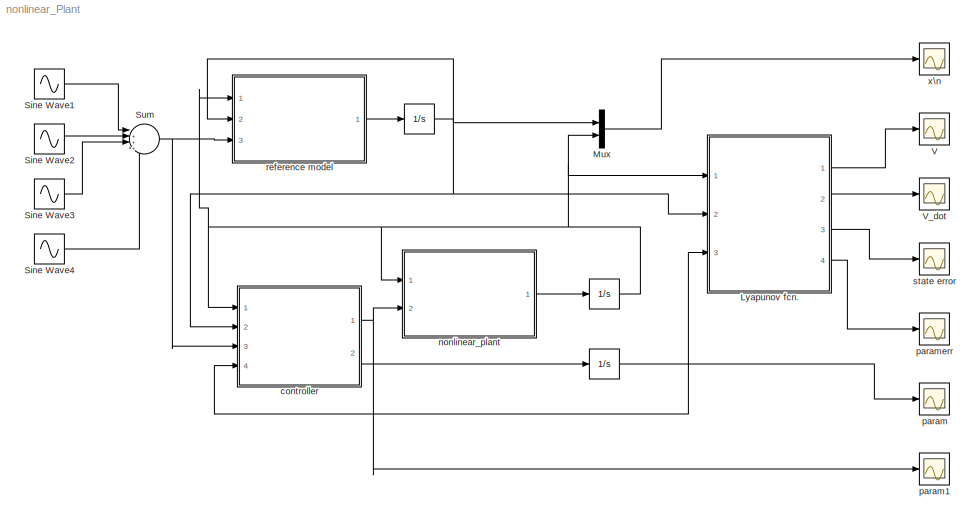
MODEL nonlinear_Plant
KIND model
BLOCK [Integrator]  
  InitialCondition = param_0
  Ports = [1, 1]
  SID = 3
BLOCK [Integrator]     
  InitialCondition = x_p_0
  Ports = [1, 1]
  SID = 2
BLOCK [Integrator]                   
  InitialCondition = x_m_0
  Ports = [1, 1]
  SID = 1
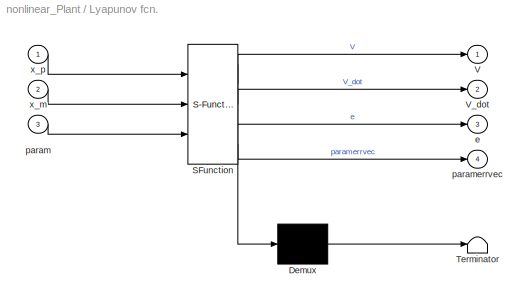
BLOCK [SubSystem] Lyapunov fcn.
  ErrorFcn = Stateflow.Translate.translate
  PermitHierarchicalResolution = ExplicitOnly
  Ports = [3, 4]
  RequestExecContextInheritance = off
  SFBlockType = MATLAB Function
  SID = 5
  TreatAsAtomicUnit = on
BLOCK [Demux] Lyapunov fcn./ Demux 
  Outputs = 1
  Ports = [1, 1]
  SID = 5::37
BLOCK [S-Function] Lyapunov fcn./ SFunction 
  EnableBusSupport = on
  FunctionName = sf_sfun
  Parameters = Gamma,a_m,k_p,k_star,theta_f,theta_star
  PortCounts = [3 5]
  Ports = [3, 5]
  SID = 5::36
  Tag = Stateflow S-Function nonlinear_Plant 4
BLOCK [Terminator] Lyapunov fcn./ Terminator 
  SID = 5::38
BLOCK [Outport] Lyapunov fcn./V
  IconDisplay = Port number
  SID = 5::23
BLOCK [Outport] Lyapunov fcn./V_dot
  IconDisplay = Port number
  Port = 2
  SID = 5::28
BLOCK [Outport] Lyapunov fcn./e
  IconDisplay = Port number
  Port = 3
  SID = 5::35
BLOCK [Inport] Lyapunov fcn./param
  IconDisplay = Port number
  Port = 3
  SID = 5::27
BLOCK [Outport] Lyapunov fcn./paramerrvec
  IconDisplay = Port number
  Port = 4
  SID = 5::34
BLOCK [Inport] Lyapunov fcn./x_m
  IconDisplay = Port number
  Port = 2
  SID = 5::22
BLOCK [Inport] Lyapunov fcn./x_p
  IconDisplay = Port number
  SID = 5::21
BLOCK [Mux] Mux
  DisplayOption = bar
  Inputs = 2
  Ports = [2, 1]
  SID = 8
BLOCK [Sin] Sine Wave1
  Frequency = 3
  Ports = [0, 1]
  SID = 20
  SampleTime = 0
BLOCK [Sin] Sine Wave2
  Frequency = 3/2
  Ports = [0, 1]
  SID = 22
  SampleTime = 0
BLOCK [Sin] Sine Wave3
  Frequency = 3/4
  Ports = [0, 1]
  SID = 23
  SampleTime = 0
BLOCK [Sin] Sine Wave4
  Frequency = 3/8
  Ports = [0, 1]
  SID = 24
  SampleTime = 0
BLOCK [Sum] Sum
  IconShape = round
  InputSameDT = off
  Inputs = |++++
  OutDataTypeStr = Inherit: Inherit via internal rule
  Ports = [4, 1]
  SID = 21
  SaturateOnIntegerOverflow = off
BLOCK [Scope] V
  DataFormat = StructureWithTime
  Floating = off
  LimitDataPoints = off
  NumInputPorts = 1
  Ports = [1]
  SID = 41
  SaveName = lyapunov
  SaveToWorkspace = on
BLOCK [Scope] V_dot
  DataFormat = StructureWithTime
  Floating = off
  LimitDataPoints = off
  NumInputPorts = 1
  Ports = [1]
  SID = 42
  SaveName = lyapunov_dot
  SaveToWorkspace = on
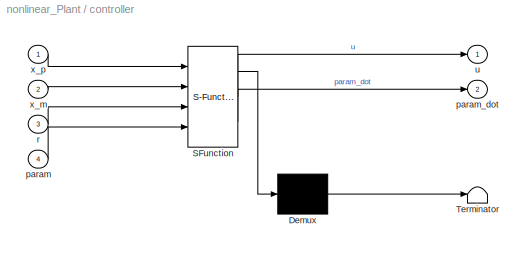
BLOCK [SubSystem] controller
  ErrorFcn = Stateflow.Translate.translate
  PermitHierarchicalResolution = ExplicitOnly
  Ports = [4, 2]
  RequestExecContextInheritance = off
  SFBlockType = MATLAB Function
  SID = 15
  TreatAsAtomicUnit = on
BLOCK [Demux] controller/ Demux 
  Outputs = 1
  Ports = [1, 1]
  SID = 15::36
BLOCK [S-Function] controller/ SFunction 
  EnableBusSupport = on
  FunctionName = sf_sfun
  Parameters = Gamma,k_p
  PortCounts = [4 3]
  Ports = [4, 3]
  SID = 15::35
  Tag = Stateflow S-Function nonlinear_Plant 2
BLOCK [Terminator] controller/ Terminator 
  SID = 15::37
BLOCK [Inport] controller/param
  IconDisplay = Port number
  Port = 4
  SID = 15::24
BLOCK [Outport] controller/param_dot
  IconDisplay = Port number
  Port = 2
  SID = 15::26
BLOCK [Inport] controller/r
  IconDisplay = Port number
  Port = 3
  SID = 15::22
BLOCK [Outport] controller/u
  IconDisplay = Port number
  SID = 15::23
BLOCK [Inport] controller/x_m
  IconDisplay = Port number
  Port = 2
  SID = 15::28
BLOCK [Inport] controller/x_p
  IconDisplay = Port number
  SID = 15::21
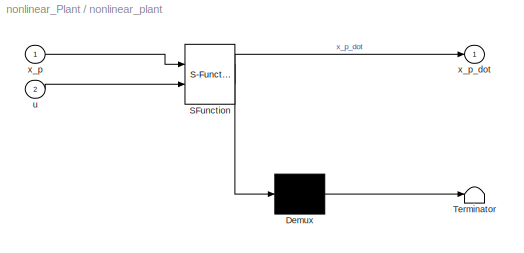
BLOCK [SubSystem] nonlinear_plant
  ErrorFcn = Stateflow.Translate.translate
  PermitHierarchicalResolution = ExplicitOnly
  Ports = [2, 1]
  RequestExecContextInheritance = off
  SFBlockType = MATLAB Function
  SID = 17
  TreatAsAtomicUnit = on
BLOCK [Demux] nonlinear_plant/ Demux 
  Outputs = 1
  Ports = [1, 1]
  SID = 17::31
BLOCK [S-Function] nonlinear_plant/ SFunction 
  EnableBusSupport = on
  FunctionName = sf_sfun
  Parameters = a_p,k_p,theta_f
  PortCounts = [2 2]
  Ports = [2, 2]
  SID = 17::30
  Tag = Stateflow S-Function nonlinear_Plant 3
BLOCK [Terminator] nonlinear_plant/ Terminator 
  SID = 17::32
BLOCK [Inport] nonlinear_plant/u
  IconDisplay = Port number
  Port = 2
  SID = 17::22
BLOCK [Inport] nonlinear_plant/x_p
  IconDisplay = Port number
  SID = 17::21
BLOCK [Outport] nonlinear_plant/x_p_dot
  IconDisplay = Port number
  SID = 17::23
BLOCK [Scope] param
  DataFormat = StructureWithTime
  Floating = off
  LimitDataPoints = off
  NumInputPorts = 1
  Ports = [1]
  SID = 44
  SaveName = parameters
  SaveToWorkspace = on
BLOCK [Scope] param1
  DataFormat = StructureWithTime
  Floating = off
  LimitDataPoints = off
  NumInputPorts = 1
  Ports = [1]
  SID = 46
  SaveName = input
  SaveToWorkspace = on
  TimeRange = 0.05881717526330021
  YMax = 0.3911744634939899
  YMin = 0.3911739240378291
BLOCK [Scope] paramerr
  DataFormat = StructureWithTime
  Floating = off
  LimitDataPoints = off
  NumInputPorts = 1
  Ports = [1]
  SID = 43
  SaveName = parameter_errors
  SaveToWorkspace = on
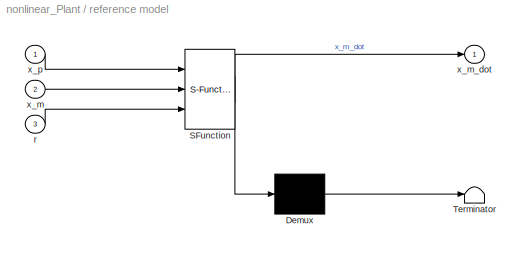
BLOCK [SubSystem] reference model
  ErrorFcn = Stateflow.Translate.translate
  PermitHierarchicalResolution = ExplicitOnly
  Ports = [3, 1]
  RequestExecContextInheritance = off
  SFBlockType = MATLAB Function
  SID = 18
  TreatAsAtomicUnit = on
BLOCK [Demux] reference model/ Demux 
  Outputs = 1
  Ports = [1, 1]
  SID = 18::27
BLOCK [S-Function] reference model/ SFunction 
  EnableBusSupport = on
  FunctionName = sf_sfun
  Parameters = a_m,k_m,l
  PortCounts = [3 2]
  Ports = [3, 2]
  SID = 18::26
  Tag = Stateflow S-Function nonlinear_Plant 1
BLOCK [Terminator] reference model/ Terminator 
  SID = 18::28
BLOCK [Inport] reference model/r
  IconDisplay = Port number
  Port = 3
  SID = 18::22
BLOCK [Inport] reference model/x_m
  IconDisplay = Port number
  Port = 2
  SID = 18::21
BLOCK [Outport] reference model/x_m_dot
  IconDisplay = Port number
  SID = 18::23
BLOCK [Inport] reference model/x_p
  IconDisplay = Port number
  SID = 18::29
BLOCK [Scope] state error
  DataFormat = StructureWithTime
  Floating = off
  LimitDataPoints = off
  NumInputPorts = 1
  Ports = [1]
  SID = 31
  SaveName = error
  SaveToWorkspace = on
  YMax = 0.015
  YMin = -0.02
  ZoomMode = yonly
BLOCK [Scope] x\n
  DataFormat = StructureWithTime
  Floating = off
  LimitDataPoints = off
  NumInputPorts = 1
  Ports = [1]
  SID = 10
  SaveName = modelAndPlant
  SaveToWorkspace = on
  YMax = -146
  YMin = -163
NET                   :1 -> Lyapunov fcn.:2, Mux:1, controller:2, reference model:2
NET     :1 -> Lyapunov fcn.:1, Mux:2, controller:1, nonlinear_plant:1, reference model:1
NET  :1 -> Lyapunov fcn.:3, controller:4, param:1
LINE Lyapunov fcn./ Demux :1 -> Lyapunov fcn./ Terminator :1
LINE Lyapunov fcn./ SFunction :1 -> Lyapunov fcn./ Demux :1
LINE Lyapunov fcn./ SFunction :2 -> Lyapunov fcn./V:1
LINE Lyapunov fcn./ SFunction :3 -> Lyapunov fcn./V_dot:1
LINE Lyapunov fcn./ SFunction :4 -> Lyapunov fcn./e:1
LINE Lyapunov fcn./ SFunction :5 -> Lyapunov fcn./paramerrvec:1
LINE Lyapunov fcn./param:1 -> Lyapunov fcn./ SFunction :3
LINE Lyapunov fcn./x_m:1 -> Lyapunov fcn./ SFunction :2
LINE Lyapunov fcn./x_p:1 -> Lyapunov fcn./ SFunction :1
LINE Lyapunov fcn.:1 -> V:1
LINE Lyapunov fcn.:2 -> V_dot:1
LINE Lyapunov fcn.:3 -> state error:1
LINE Lyapunov fcn.:4 -> paramerr:1
LINE Mux:1 -> x\n:1
LINE Sine Wave1:1 -> Sum:1
LINE Sine Wave2:1 -> Sum:2
LINE Sine Wave3:1 -> Sum:3
LINE Sine Wave4:1 -> Sum:4
NET Sum:1 -> controller:3, reference model:3
LINE controller/ Demux :1 -> controller/ Terminator :1
LINE controller/ SFunction :1 -> controller/ Demux :1
LINE controller/ SFunction :2 -> controller/u:1
LINE controller/ SFunction :3 -> controller/param_dot:1
LINE controller/param:1 -> controller/ SFunction :4
LINE controller/r:1 -> controller/ SFunction :3
LINE controller/x_m:1 -> controller/ SFunction :2
LINE controller/x_p:1 -> controller/ SFunction :1
NET controller:1 -> nonlinear_plant:2, param1:1
LINE controller:2 ->  :1
LINE nonlinear_plant/ Demux :1 -> nonlinear_plant/ Terminator :1
LINE nonlinear_plant/ SFunction :1 -> nonlinear_plant/ Demux :1
LINE nonlinear_plant/ SFunction :2 -> nonlinear_plant/x_p_dot:1
LINE nonlinear_plant/u:1 -> nonlinear_plant/ SFunction :2
LINE nonlinear_plant/x_p:1 -> nonlinear_plant/ SFunction :1
LINE nonlinear_plant:1 ->     :1
LINE reference model/ Demux :1 -> reference model/ Terminator :1
LINE reference model/ SFunction :1 -> reference model/ Demux :1
LINE reference model/ SFunction :2 -> reference model/x_m_dot:1
LINE reference model/r:1 -> reference model/ SFunction :3
LINE reference model/x_m:1 -> reference model/ SFunction :2
LINE reference model/x_p:1 -> reference model/ SFunction :1
LINE reference model:1 ->                   :1
note: NET lines group one-source signal fan-out (src -> all destinations, sorted); 1:1 wires keep LINE
CHART reference model states=1 transitions=1
  STATE_LABEL 'eML_blk_kernel()'
CHART controller states=1 transitions=1
  STATE_LABEL 'eML_blk_kernel()'
CHART nonlinear_plant states=1 transitions=1
  STATE_LABEL 'eML_blk_kernel()'
CHART Lyapunov fcn. states=1 transitions=1
  STATE_LABEL 'eML_blk_kernel()'
